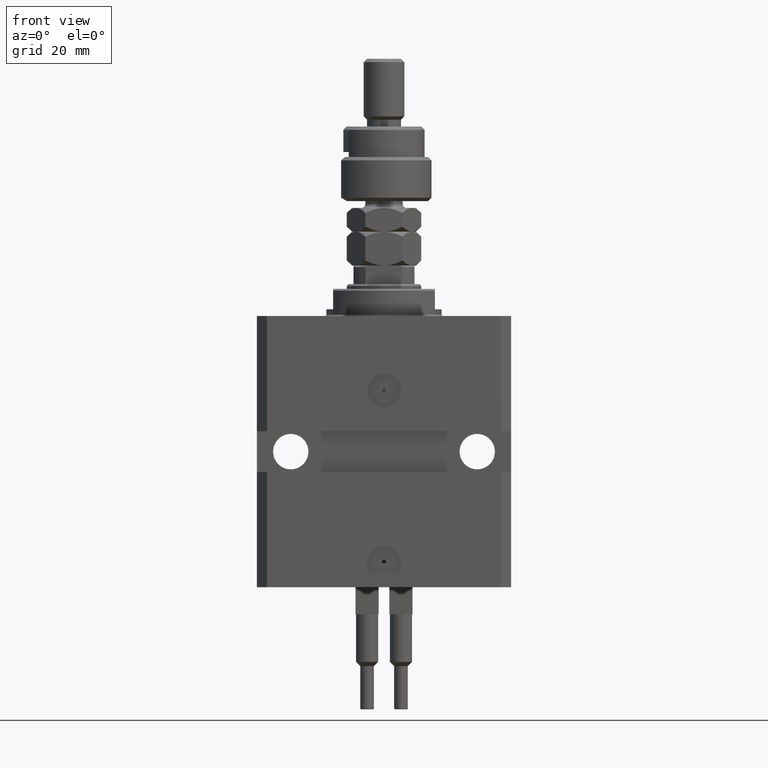
[diagram: clean part render]
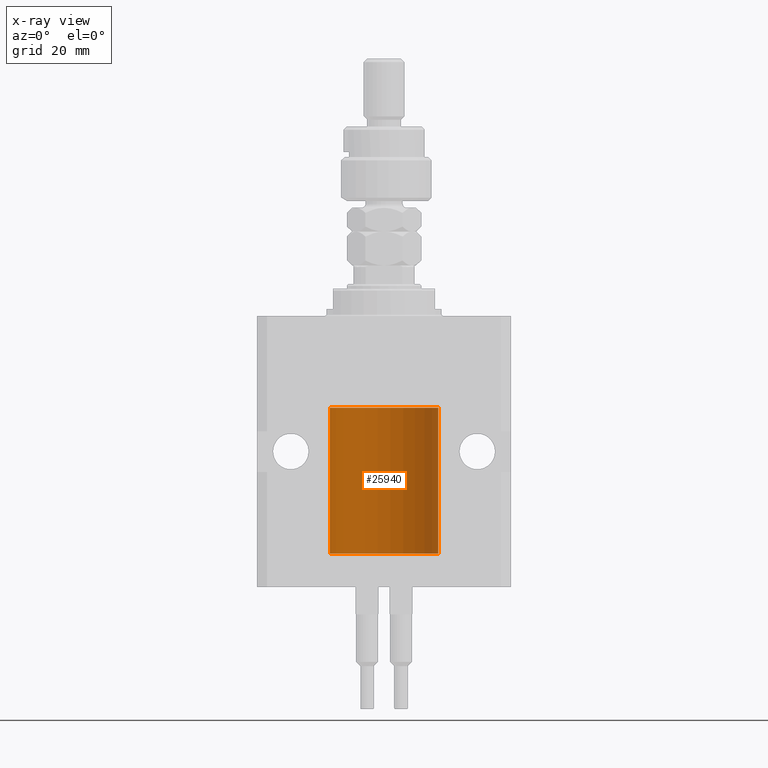
[diagram: x-ray — body ghosted, one internal face saturated and labeled with its STEP entity id]
A machine part, front view, then the same camera in x-ray: the body is ghosted and one INTERNAL B-rep face — a face not visible from any outside direction — is saturated and labeled: STEP entity #25940.
In plain terms, the highlighted cylindrical surface (partial cylindrical patch) has radius 16 mm, axis along (0, 0, 1).
Its self-contained STEP definition (entity closure, byte-faithful):
#1367 = AXIS2_PLACEMENT_3D ( 'NONE', #24382, #17491, #33054 ) ;
#1450 = VERTEX_POINT ( 'NONE', #37402 ) ;
#1911 = CARTESIAN_POINT ( 'NONE',  ( -16.00000000000000000, 1.959434878635765131E-15, -70.09999999999999432 ) ) ;
#2159 = CARTESIAN_POINT ( 'NONE',  ( 16.00000000000000000, -1.835653844722709729E-15, -68.62500000000000000 ) ) ;
#3564 = EDGE_CURVE ( 'NONE', #29510, #9033, #42174, .T. ) ;
#5323 = ORIENTED_EDGE ( 'NONE', *, *, #25358, .T. ) ;
#5753 = FACE_OUTER_BOUND ( 'NONE', #26261, .T. ) ;
#6075 = ORIENTED_EDGE ( 'NONE', *, *, #3564, .F. ) ;
#6469 = CARTESIAN_POINT ( 'NONE',  ( 16.00000000000000000, 0.000000000000000000, -70.09999999999999432 ) ) ;
#9033 = VERTEX_POINT ( 'NONE', #29383 ) ;
#11070 = DIRECTION ( 'NONE',  ( -0.000000000000000000, -0.000000000000000000, 1.000000000000000000 ) ) ;
#11108 = VERTEX_POINT ( 'NONE', #14706 ) ;
#11206 = LINE ( 'NONE', #46427, #29849 ) ;
#11460 = DIRECTION ( 'NONE',  ( -0.000000000000000000, -0.000000000000000000, 1.000000000000000000 ) ) ;
#13434 = VECTOR ( 'NONE', #39969, 1000.000000000000000 ) ;
#13621 = CARTESIAN_POINT ( 'NONE',  ( 0.000000000000000000, 0.000000000000000000, -70.09999999999999432 ) ) ;
#14162 = CARTESIAN_POINT ( 'NONE',  ( 15.99711856062700477, 0.3252985083514284281, -67.44140297987711108 ) ) ;
#14706 = CARTESIAN_POINT ( 'NONE',  ( -16.00000000000000000, 1.959434878635765131E-15, -27.10000000000000142 ) ) ;
#14835 = CARTESIAN_POINT ( 'NONE',  ( 15.98778830858070954, 0.6250000000080517815, -67.99999999999916156 ) ) ;
#15534 = CARTESIAN_POINT ( 'NONE',  ( 16.00000000000000000, 0.000000000000000000, -27.10000000000000142 ) ) ;
#16973 = CARTESIAN_POINT ( 'NONE',  ( 16.00000000000000000, -1.835653844722709729E-15, -68.62500000000000000 ) ) ;
#17491 = DIRECTION ( 'NONE',  ( -0.000000000000000000, -0.000000000000000000, 1.000000000000000000 ) ) ;
#17709 = DIRECTION ( 'NONE',  ( 0.000000000000000000, 0.000000000000000000, 1.000000000000000000 ) ) ;
#18249 = CARTESIAN_POINT ( 'NONE',  ( 16.00000000000013145, 3.665532692826917502E-13, -67.37499999999657518 ) ) ;
#18916 = CARTESIAN_POINT ( 'NONE',  ( 16.00000000000001066, 0.08261762387943044628, -68.62500000000000000 ) ) ;
#18997 = CARTESIAN_POINT ( 'NONE',  ( 15.99999999999999645, 0.1631343969470158417, -67.37500000000021316 ) ) ;
#21801 = EDGE_CURVE ( 'NONE', #1450, #25516, #36640, .T. ) ;
#24382 = CARTESIAN_POINT ( 'NONE',  ( 0.000000000000000000, 0.000000000000000000, -70.09999999999999432 ) ) ;
#24533 = EDGE_CURVE ( 'NONE', #9033, #11108, #44535, .T. ) ;
#24674 = ORIENTED_EDGE ( 'NONE', *, *, #40826, .T. ) ;
#25358 = EDGE_CURVE ( 'NONE', #29510, #45167, #11206, .T. ) ;
#25516 = VERTEX_POINT ( 'NONE', #15534 ) ;
#25660 = VERTEX_POINT ( 'NONE', #34368 ) ;
#25940 = ADVANCED_FACE ( 'NONE', ( #5753 ), #36891, .F. ) ;
#26261 = EDGE_LOOP ( 'NONE', ( #27296, #6075, #5323, #43725, #24674, #36637, #31870 ) ) ;
#27296 = ORIENTED_EDGE ( 'NONE', *, *, #24533, .F. ) ;
#27903 = DIRECTION ( 'NONE',  ( 0.000000000000000000, 0.000000000000000000, 1.000000000000000000 ) ) ;
#29216 = CARTESIAN_POINT ( 'NONE',  ( 16.00000000000000000, 0.000000000000000000, -70.09999999999999432 ) ) ;
#29220 = CARTESIAN_POINT ( 'NONE',  ( 15.98778830858070954, 0.6250000000080517815, -67.99999999999916156 ) ) ;
#29383 = CARTESIAN_POINT ( 'NONE',  ( -16.00000000000000000, 1.959434878635765131E-15, -70.09999999999999432 ) ) ;
#29495 = CIRCLE ( 'NONE', #38481, 16.00000000000000000 ) ;
#29510 = VERTEX_POINT ( 'NONE', #6469 ) ;
#29849 = VECTOR ( 'NONE', #11460, 1000.000000000000000 ) ;
#30809 = EDGE_CURVE ( 'NONE', #25516, #11108, #29495, .T. ) ;
#31450 = VECTOR ( 'NONE', #11070, 1000.000000000000000 ) ;
#31870 = ORIENTED_EDGE ( 'NONE', *, *, #30809, .T. ) ;
#33054 = DIRECTION ( 'NONE',  ( 1.000000000000000000, 0.000000000000000000, 0.000000000000000000 ) ) ;
#33996 = AXIS2_PLACEMENT_3D ( 'NONE', #13621, #17709, #44244 ) ;
#34368 = CARTESIAN_POINT ( 'NONE',  ( 15.98778830858070954, 0.6250000000080517815, -67.99999999999916156 ) ) ;
#34478 = CARTESIAN_POINT ( 'NONE',  ( 15.99934183755190986, 0.1636877470527013101, -68.60872690654070993 ) ) ;
#35845 = CARTESIAN_POINT ( 'NONE',  ( 0.000000000000000000, 0.000000000000000000, -27.10000000000000142 ) ) ;
#36340 = DIRECTION ( 'NONE',  ( 1.000000000000000000, 0.000000000000000000, 0.000000000000000000 ) ) ;
#36637 = ORIENTED_EDGE ( 'NONE', *, *, #21801, .T. ) ;
#36640 = LINE ( 'NONE', #29216, #13434 ) ;
#36891 = CYLINDRICAL_SURFACE ( 'NONE', #1367, 16.00000000000000000 ) ;
#37402 = CARTESIAN_POINT ( 'NONE',  ( 16.00000000000013145, 3.665532692826917502E-13, -67.37499999999657518 ) ) ;
#37880 = B_SPLINE_CURVE_WITH_KNOTS ( 'NONE', 3,
 ( #2159, #18916, #34478, #50059, #38571, #49805, #46231, #14835 ),
 .UNSPECIFIED., .F., .F.,
 ( 4, 2, 2, 4 ),
 ( 1.783888443149829469E-18, 0.0002443331572175257886, 0.0004886663144350497342, 0.0009773326288700682433 ),
 .UNSPECIFIED. ) ;
#37898 = CARTESIAN_POINT ( 'NONE',  ( 15.98844460043491367, 0.6087869699337551399, -67.83657454967556077 ) ) ;
#38481 = AXIS2_PLACEMENT_3D ( 'NONE', #35845, #27903, #36340 ) ;
#38571 = CARTESIAN_POINT ( 'NONE',  ( 15.99548458234361448, 0.3844468804816183471, -68.49947786696357355 ) ) ;
#38798 = EDGE_CURVE ( 'NONE', #45167, #25660, #37880, .T. ) ;
#39969 = DIRECTION ( 'NONE',  ( -0.000000000000000000, -0.000000000000000000, 1.000000000000000000 ) ) ;
#40826 = EDGE_CURVE ( 'NONE', #25660, #1450, #46779, .T. ) ;
#42174 = CIRCLE ( 'NONE', #33996, 16.00000000000000000 ) ;
#43725 = ORIENTED_EDGE ( 'NONE', *, *, #38798, .T. ) ;
#44244 = DIRECTION ( 'NONE',  ( 1.000000000000000000, 0.000000000000000000, 0.000000000000000000 ) ) ;
#44535 = LINE ( 'NONE', #1911, #31450 ) ;
#44809 = CARTESIAN_POINT ( 'NONE',  ( 15.98778830858103817, 0.6249999999997223332, -67.91847885046213662 ) ) ;
#45167 = VERTEX_POINT ( 'NONE', #16973 ) ;
#46231 = CARTESIAN_POINT ( 'NONE',  ( 15.98778830858101685, 0.6250000000002223777, -68.16311639173024162 ) ) ;
#46427 = CARTESIAN_POINT ( 'NONE',  ( 16.00000000000000000, 0.000000000000000000, -70.09999999999999432 ) ) ;
#46779 = B_SPLINE_CURVE_WITH_KNOTS ( 'NONE', 3,
 ( #29220, #44809, #37898, #49388, #49885, #14162, #18997, #18249 ),
 .UNSPECIFIED., .F., .F.,
 ( 4, 2, 2, 4 ),
 ( 0.0009773326288700682433, 0.001221554802188685399, 0.001465776975507302772, 0.001954221322144537518 ),
 .UNSPECIFIED. ) ;
#49388 = CARTESIAN_POINT ( 'NONE',  ( 15.99070695999103542, 0.5461439696927204990, -67.68526802364047512 ) ) ;
#49805 = CARTESIAN_POINT ( 'NONE',  ( 15.99070366873610283, 0.5574063959867601170, -68.32639436837555991 ) ) ;
#49885 = CARTESIAN_POINT ( 'NONE',  ( 15.99228275317786441, 0.5002975944204781644, -67.61642014570176684 ) ) ;
#50059 = CARTESIAN_POINT ( 'NONE',  ( 15.99707608081895138, 0.3151028052310259620, -68.54594170697733091 ) ) ;